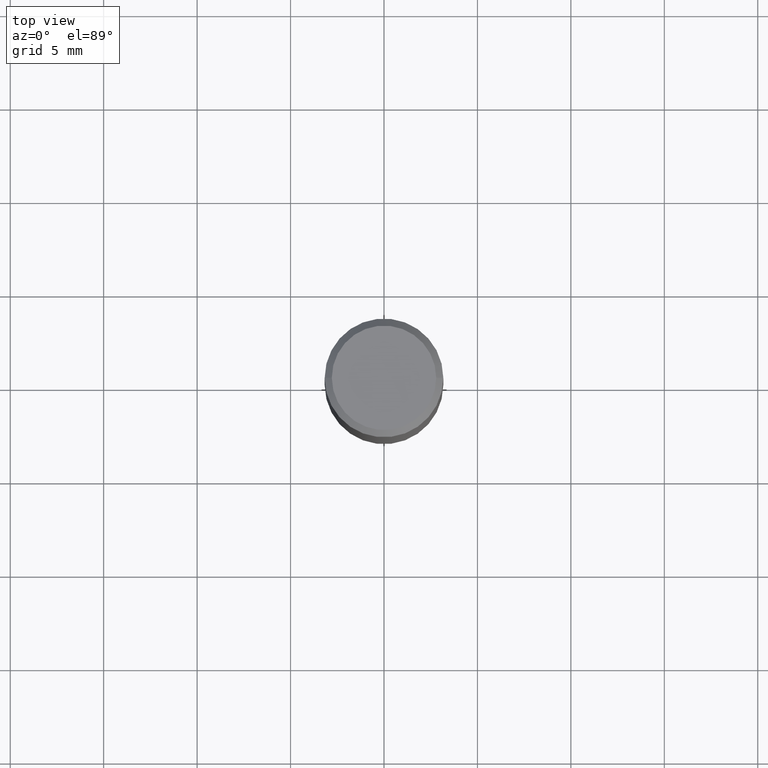
[diagram: clean part render]
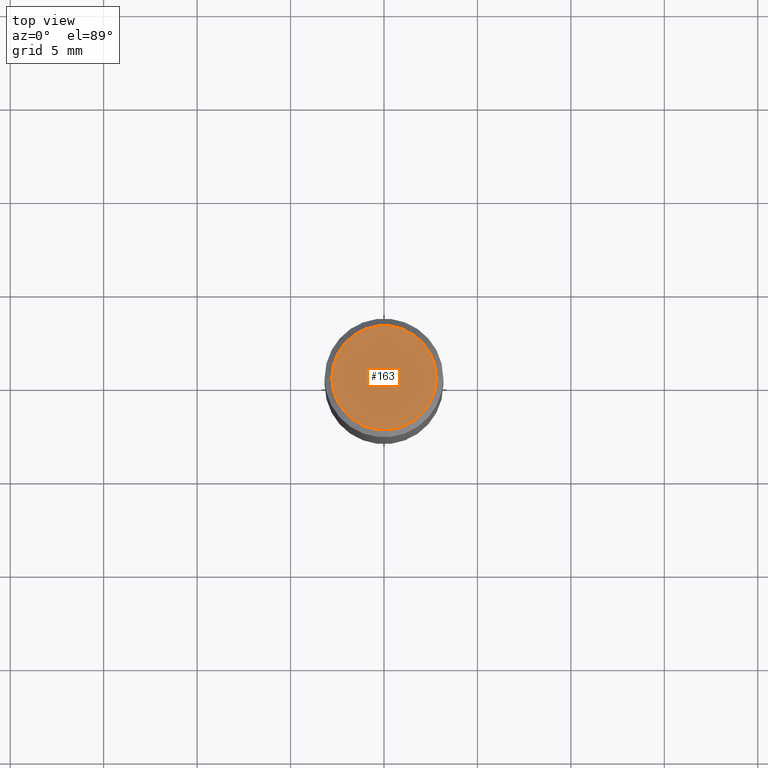
[diagram: same view with one face highlighted and labeled with its STEP entity id]
A machine part, top view. The second image highlights one B-rep face of the part: STEP entity #163.
In plain terms, the highlighted planar face has unit normal (0, -0, -1).
Its self-contained STEP definition (entity closure, byte-faithful):
#5 = DIRECTION ( 'NONE',  ( -2.445468806185136597E-29, 3.491481338843145583E-15, 1.000000000000000000 ) ) ;
#25 = VERTEX_POINT ( 'NONE', #371 ) ;
#33 = CARTESIAN_POINT ( 'NONE',  ( 1.876754654212523840E-46, -2.679508254694119990E-32, -7.674416657721384454E-18 ) ) ;
#36 = DIRECTION ( 'NONE',  ( -2.445468806185136597E-29, 3.491481338843145583E-15, 1.000000000000000000 ) ) ;
#42 = EDGE_CURVE ( 'NONE', #345, #25, #86, .T. ) ;
#51 = FACE_OUTER_BOUND ( 'NONE', #414, .T. ) ;
#86 = CIRCLE ( 'NONE', #375, 0.1100000000000000006 ) ;
#105 = AXIS2_PLACEMENT_3D ( 'NONE', #33, #36, #368 ) ;
#116 = DIRECTION ( 'NONE',  ( -1.000000000000000000, 6.982962677686265922E-15, -4.876176775795935793E-29 ) ) ;
#118 = AXIS2_PLACEMENT_3D ( 'NONE', #187, #380, #116 ) ;
#163 = ADVANCED_FACE ( 'NONE', ( #51 ), #452, .F. ) ;
#187 = CARTESIAN_POINT ( 'NONE',  ( 7.681258945454893776E-16, 0.1100000000000000006, -3.879001556016067477E-16 ) ) ;
#195 = CIRCLE ( 'NONE', #105, 0.1100000000000000006 ) ;
#205 = ORIENTED_EDGE ( 'NONE', *, *, #395, .T. ) ;
#213 = ORIENTED_EDGE ( 'NONE', *, *, #42, .T. ) ;
#296 = CARTESIAN_POINT ( 'NONE',  ( 1.876754654212523840E-46, -2.679508254694119990E-32, -7.674416657721384454E-18 ) ) ;
#329 = DIRECTION ( 'NONE',  ( 1.000000000000000000, -6.982962677686266711E-15, 4.876001053725558154E-29 ) ) ;
#345 = VERTEX_POINT ( 'NONE', #361 ) ;
#361 = CARTESIAN_POINT ( 'NONE',  ( 0.1100000000000000006, -8.322946247794786836E-16, -7.674416657715788472E-18 ) ) ;
#368 = DIRECTION ( 'NONE',  ( 1.000000000000000000, -6.982962677686266711E-15, 4.876001053725558154E-29 ) ) ;
#371 = CARTESIAN_POINT ( 'NONE',  ( -0.1100000000000000006, 7.943120045868128186E-16, -7.674416657726847932E-18 ) ) ;
#375 = AXIS2_PLACEMENT_3D ( 'NONE', #296, #5, #329 ) ;
#380 = DIRECTION ( 'NONE',  ( 2.438088387897960049E-29, -3.491481338843145188E-15, -1.000000000000000000 ) ) ;
#395 = EDGE_CURVE ( 'NONE', #25, #345, #195, .T. ) ;
#414 = EDGE_LOOP ( 'NONE', ( #205, #213 ) ) ;
#452 = PLANE ( 'NONE',  #118 ) ;